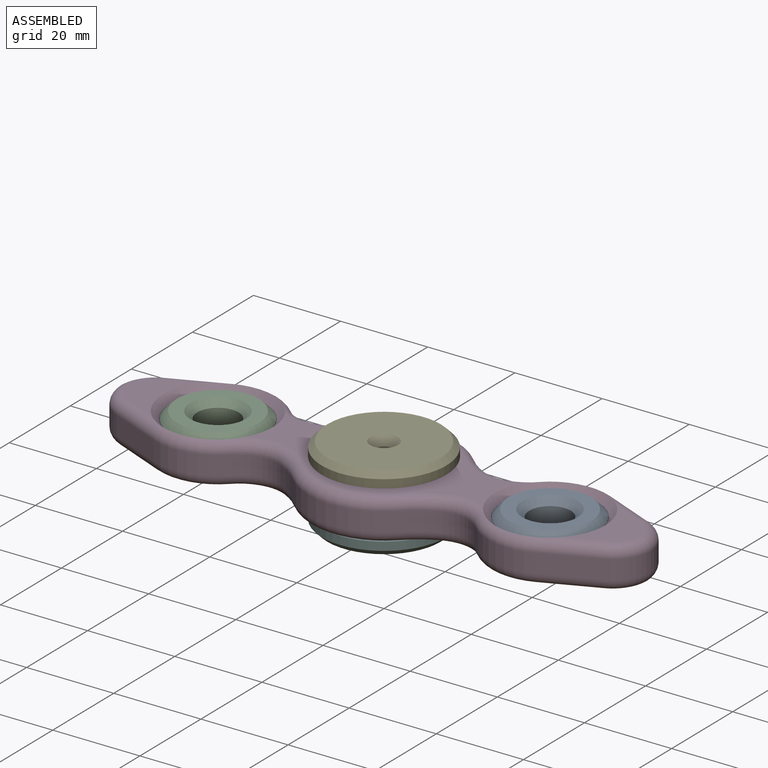
[diagram: assembled view]
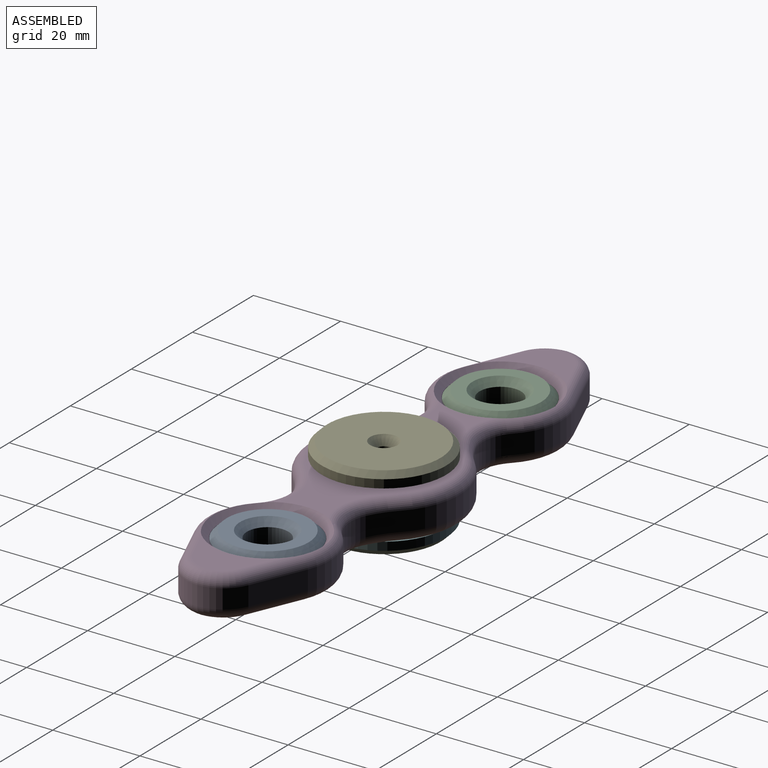
[diagram: assembled view, second angle]
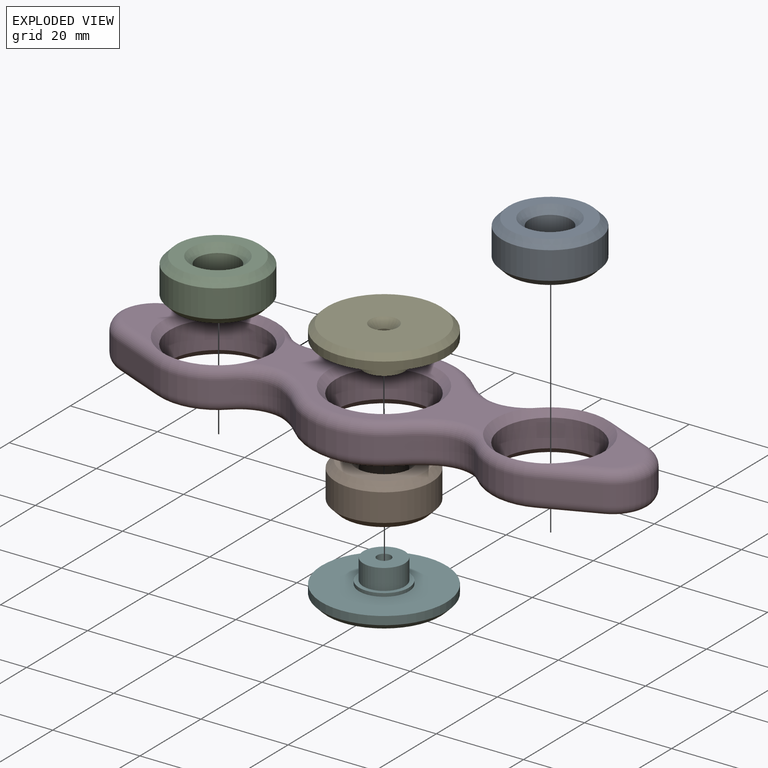
[diagram: exploded view]
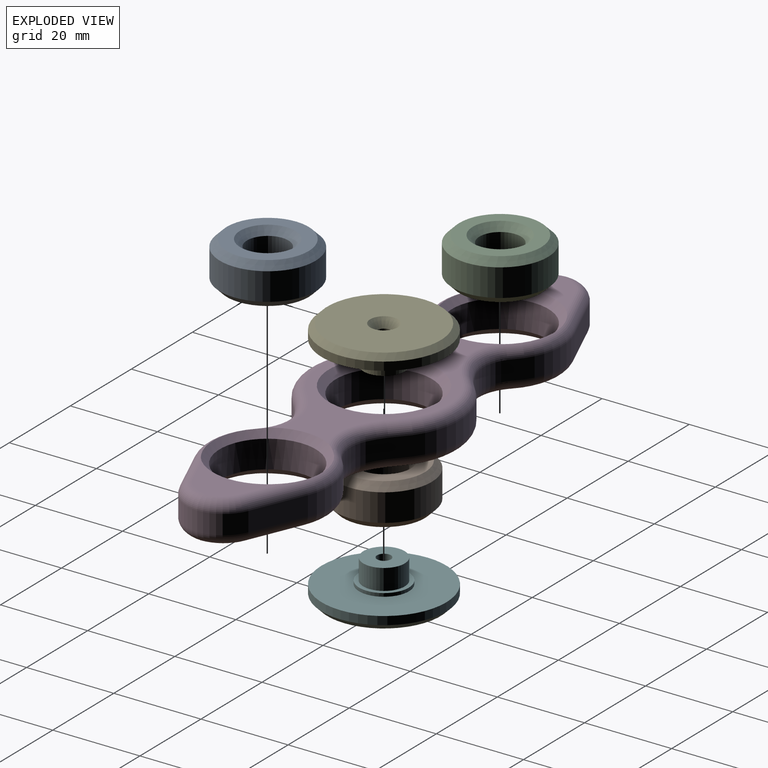
[diagram: exploded view, second angle]
ASSEMBLY  parts=6 mates=5
PART A: 8 faces, bbox 22x22x9.5 mm
  f0: cylinder r=4.76mm len=9.53mm, axis (0,0,-1), area 190mm2, adj f4,f5
  f1: cylinder r=10.99mm len=21.97mm, axis (0,0,-1), area 438.3mm2, adj f6,f7
  f2: plane 18.8x18.8mm, normal (0,0,1), area 150.8mm2, adj f5,f6
  f3: plane 18.8x18.8mm, normal (0,0,-1), area 150.8mm2, adj f4,f7
  f4: cone r=6.35mm half-angle=45deg, axis (0,0,-1), area 78.4mm2, adj f0,f3
  f5: cone r=4.76mm half-angle=45deg, axis (0,0,1), area 78.4mm2, adj f0,f2
  f6: cone r=9.4mm half-angle=45deg, axis (0,0,-1), area 143.8mm2, adj f1,f2
  f7: cone r=10.99mm half-angle=45deg, axis (0,0,1), area 143.8mm2, adj f1,f3
PART B: same geometry as A
PART C: same geometry as A
PART D: 81 faces, bbox 123.9x37.7x9.5 mm
  f0: plane 54.23x29.72mm, normal (0,0,-1), area 459mm2, adj f37,f38,f39,f40,f41,f42,f43,f44
  f1: plane 17.75x11.57mm, normal (0,0,-1), area 97.9mm2, adj f31,f32,f33,f34,f76
  f2: plane 54.23x29.72mm, normal (0,0,1), area 459mm2, adj f59,f60,f61,f62,f63,f64,f65,f66
  f3: plane 17.75x11.57mm, normal (0,0,1), area 97.9mm2, adj f71,f72,f73,f74,f75
  f4: cylinder r=8.89mm len=10.14mm, axis (0,0,-1), area 48.7mm2, adj f5,f26,f37,f67
  f5: cylinder r=14.22mm len=15.62mm, axis (0,0,-1), area 75mm2, adj f4,f6,f35,f69
  f6: plane 12.14x5.15mm, normal (0.39,-0.92,0), area 58.6mm2, adj f5,f7,f33,f71
  f7: cylinder r=8.89mm len=7.94mm, axis (0,0,-1), area 45.1mm2, adj f6,f8,f31,f73
  f8: cylinder r=8.89mm len=7.94mm, axis (0,0,-1), area 45.1mm2, adj f7,f9,f32,f74
  f9: plane 12.14x5.15mm, normal (0.39,0.92,0), area 58.6mm2, adj f8,f10,f34,f72
  f10: cylinder r=14.22mm len=15.62mm, axis (0,0,-1), area 75mm2, adj f9,f11,f36,f70
  f11: cylinder r=8.89mm len=10.14mm, axis (0,0,-1), area 48.7mm2, adj f10,f12,f38,f68
  f12: cylinder r=20.45mm len=5.6mm, axis (0,0,-1), area 30.7mm2, adj f11,f13,f40,f66
  f13: cylinder r=17.4mm len=24.61mm, axis (0,0,-1), area 121.5mm2, adj f12,f14,f42,f64
  f14: cylinder r=20.45mm len=5.6mm, axis (0,0,-1), area 30.7mm2, adj f13,f15,f44,f62
  f15: cylinder r=8.89mm len=10.14mm, axis (0,0,-1), area 48.7mm2, adj f14,f16,f46,f60
  f16: cylinder r=14.22mm len=15.62mm, axis (0,0,-1), area 75mm2, adj f15,f17,f48,f58
  f17: plane 12.14x5.15mm, normal (-0.39,0.92,0), area 58.6mm2, adj f16,f18,f50,f56
  f18: cylinder r=8.89mm len=7.94mm, axis (0,0,-1), area 45.1mm2, adj f17,f19,f52,f54
  f19: cylinder r=8.89mm len=7.94mm, axis (0,0,-1), area 45.1mm2, adj f18,f20,f51,f53
  f20: plane 12.14x5.15mm, normal (-0.39,-0.92,0), area 58.6mm2, adj f19,f21,f49,f55
  f21: cylinder r=14.22mm len=15.62mm, axis (0,0,-1), area 75mm2, adj f20,f22,f47,f57
  f22: cylinder r=8.89mm len=10.14mm, axis (0,0,-1), area 48.7mm2, adj f21,f23,f45,f59
  f23: cylinder r=20.45mm len=5.6mm, axis (0,0,-1), area 30.7mm2, adj f22,f24,f43,f61
  f24: cylinder r=17.4mm len=24.61mm, axis (0,0,-1), area 121.5mm2, adj f23,f26,f41,f63
  f25: cylinder r=11.05mm len=22.1mm, axis (0,0,-1), area 440.8mm2, adj f79,f80
  f26: cylinder r=20.45mm len=5.6mm, axis (0,0,-1), area 30.7mm2, adj f4,f24,f39,f65
  f27: cylinder r=11.05mm len=22.1mm, axis (0,0,-1), area 440.8mm2, adj f75,f76
  f28: cylinder r=11.05mm len=22.1mm, axis (0,0,-1), area 440.8mm2, adj f77,f78
  f29: plane 17.75x11.57mm, normal (0,0,1), area 97.9mm2, adj f53,f54,f55,f56,f78
  f30: plane 17.75x11.57mm, normal (0,0,-1), area 97.9mm2, adj f49,f50,f51,f52,f77
  f31: torus R=6.35mm, axis (0,0,1), area 36.1mm2, adj f1,f7,f32,f33
  f32: torus R=6.35mm, axis (0,0,1), area 36.1mm2, adj f1,f8,f31,f34
  f33: cylinder r=2.54mm len=13.13mm, axis (0.92,0.39,0), area 49.9mm2, adj f1,f6,f31,f35,f76
  f34: cylinder r=2.54mm len=13.13mm, axis (-0.92,0.39,0), area 49.9mm2, adj f1,f9,f32,f36,f76
  f35: torus R=11.68mm, axis (0,0,1), area 51mm2, adj f5,f33,f37,f76
  f36: torus R=11.68mm, axis (0,0,1), area 51mm2, adj f10,f34,f38,f76
  f37: torus R=11.43mm, axis (0,0,1), area 46.4mm2, adj f0,f4,f35,f39,f76
  f38: torus R=11.43mm, axis (0,0,1), area 46.4mm2, adj f0,f11,f36,f40,f76
  f39: torus R=22.99mm, axis (0,0,1), area 28.8mm2, adj f0,f26,f37,f41
  f40: torus R=22.99mm, axis (0,0,1), area 28.8mm2, adj f0,f12,f38,f42
  f41: torus R=14.86mm, axis (0,0,1), area 103.3mm2, adj f0,f24,f39,f43
  f42: torus R=14.86mm, axis (0,0,1), area 103.3mm2, adj f0,f13,f40,f44
  f43: torus R=22.99mm, axis (0,0,1), area 28.8mm2, adj f0,f23,f41,f45
  f44: torus R=22.99mm, axis (0,0,1), area 28.8mm2, adj f0,f14,f42,f46
  f45: torus R=11.43mm, axis (0,0,1), area 46.4mm2, adj f0,f22,f43,f47,f77
  f46: torus R=11.43mm, axis (0,0,1), area 46.4mm2, adj f0,f15,f44,f48,f77
  f47: torus R=11.68mm, axis (0,0,1), area 51mm2, adj f21,f45,f49,f77
  f48: torus R=11.68mm, axis (0,0,1), area 51mm2, adj f16,f46,f50,f77
  f49: cylinder r=2.54mm len=13.13mm, axis (0.92,-0.39,0), area 49.9mm2, adj f20,f30,f47,f51,f77
  f50: cylinder r=2.54mm len=13.13mm, axis (-0.92,-0.39,0), area 49.9mm2, adj f17,f30,f48,f52,f77
  f51: torus R=6.35mm, axis (0,0,1), area 36.1mm2, adj f19,f30,f49,f52
  f52: torus R=6.35mm, axis (0,0,1), area 36.1mm2, adj f18,f30,f50,f51
  f53: torus R=6.35mm, axis (0,0,1), area 36.1mm2, adj f19,f29,f54,f55
  f54: torus R=6.35mm, axis (0,0,1), area 36.1mm2, adj f18,f29,f53,f56
  f55: cylinder r=2.54mm len=13.13mm, axis (-0.92,0.39,0), area 49.9mm2, adj f20,f29,f53,f57,f78
  f56: cylinder r=2.54mm len=13.13mm, axis (0.92,0.39,0), area 49.9mm2, adj f17,f29,f54,f58,f78
  f57: torus R=11.68mm, axis (0,0,1), area 51mm2, adj f21,f55,f59,f78
  f58: torus R=11.68mm, axis (0,0,1), area 51mm2, adj f16,f56,f60,f78
  f59: torus R=11.43mm, axis (0,0,1), area 46.4mm2, adj f2,f22,f57,f61,f78
  f60: torus R=11.43mm, axis (0,0,1), area 46.4mm2, adj f2,f15,f58,f62,f78
  f61: torus R=22.99mm, axis (0,0,1), area 28.8mm2, adj f2,f23,f59,f63
  f62: torus R=22.99mm, axis (0,0,1), area 28.8mm2, adj f2,f14,f60,f64
  f63: torus R=14.86mm, axis (0,0,1), area 103.3mm2, adj f2,f24,f61,f65
  f64: torus R=14.86mm, axis (0,0,1), area 103.3mm2, adj f2,f13,f62,f66
  f65: torus R=22.99mm, axis (0,0,1), area 28.8mm2, adj f2,f26,f63,f67
  f66: torus R=22.99mm, axis (0,0,1), area 28.8mm2, adj f2,f12,f64,f68
  f67: torus R=11.43mm, axis (0,0,1), area 46.4mm2, adj f2,f4,f65,f69,f75
  f68: torus R=11.43mm, axis (0,0,1), area 46.4mm2, adj f2,f11,f66,f70,f75
  f69: torus R=11.68mm, axis (0,0,1), area 51mm2, adj f5,f67,f71,f75
  f70: torus R=11.68mm, axis (0,0,1), area 51mm2, adj f10,f68,f72,f75
  f71: cylinder r=2.54mm len=13.13mm, axis (-0.92,-0.39,0), area 49.9mm2, adj f3,f6,f69,f73,f75
  f72: cylinder r=2.54mm len=13.13mm, axis (0.92,-0.39,0), area 49.9mm2, adj f3,f9,f70,f74,f75
  f73: torus R=6.35mm, axis (0,0,1), area 36.1mm2, adj f3,f7,f71,f74
  f74: torus R=6.35mm, axis (0,0,1), area 36.1mm2, adj f3,f8,f72,f73
  f75: cone r=11.05mm half-angle=45deg, axis (0,0,1), area 159.8mm2, adj f2,f3,f27,f67,f68,f69,f70,f71
  f76: cone r=12.64mm half-angle=45deg, axis (0,0,-1), area 159.8mm2, adj f0,f1,f27,f33,f34,f35,f36,f37
  f77: cone r=12.64mm half-angle=45deg, axis (0,0,-1), area 159.8mm2, adj f0,f28,f30,f45,f46,f47,f48,f49
  f78: cone r=11.05mm half-angle=45deg, axis (0,0,1), area 159.8mm2, adj f2,f28,f29,f55,f56,f57,f58,f59
  f79: cone r=12.64mm half-angle=45deg, axis (0,0,-1), area 167.1mm2, adj f0,f25
  f80: cone r=11.05mm half-angle=45deg, axis (0,0,1), area 167.1mm2, adj f2,f25
PART E: 10 faces, bbox 28.6x28.6x8.7 mm
  f0: plane 9.53x9.53mm, normal (0,0,1), area 63.3mm2, adj f1,f8
  f1: cylinder r=4.76mm len=9.53mm, axis (0,0,-1), area 142.5mm2, adj f0,f2
  f2: plane 11.43x11.43mm, normal (0,0,1), area 31.4mm2, adj f1,f3
  f3: cylinder r=5.71mm len=11.43mm, axis (0,0,-1), area 27.4mm2, adj f2,f4
  f4: plane 28.58x28.58mm, normal (0,0,1), area 538.7mm2, adj f3,f5
  f5: cylinder r=14.29mm len=28.58mm, axis (0,0,-1), area 171mm2, adj f4,f6
  f6: cone r=14.29mm half-angle=45deg, axis (0,0,1), area 154.1mm2, adj f5,f7
  f7: plane 26.04x26.04mm, normal (0,0,-1), area 500.7mm2, adj f6,f9
  f8: cylinder r=1.59mm len=6.87mm, axis (0,0,-1), area 68.6mm2, adj f0,f9
  f9: cone r=1.59mm half-angle=41deg, axis (0,0,-1), area 36.2mm2, adj f7,f8
PART F: 16 faces, bbox 28.6x28.6x8.7 mm
  f0: cone r=14.29mm half-angle=45deg, axis (0,0,-1), area 154.1mm2, adj f1,f9
  f1: cylinder r=14.29mm len=28.58mm, axis (0,0,1), area 171mm2, adj f0,f2
  f2: plane 28.58x28.58mm, normal (0,0,-1), area 538.7mm2, adj f1,f3
  f3: cylinder r=5.71mm len=11.43mm, axis (0,0,1), area 27.4mm2, adj f2,f4
  f4: plane 11.43x11.43mm, normal (0,0,-1), area 31.4mm2, adj f3,f5
  f5: cylinder r=4.76mm len=9.53mm, axis (0,0,1), area 142.5mm2, adj f4,f6
  f6: plane 9.53x9.53mm, normal (0,0,-1), area 63.3mm2, adj f5,f7
  f7: cylinder r=1.59mm len=7.11mm, axis (0,0,1), area 70.9mm2, adj f6,f8
  f8: plane 7.33x6.35mm, normal (0,0,1), area 27mm2, adj f7,f10,f11,f12,f13,f14,f15
  f9: plane 26.04x26.04mm, normal (0,0,1), area 497.4mm2, adj f0,f10,f11,f12,f13,f14,f15
  f10: plane 3.18x1.83mm, normal (-0.87,-0.5,0), area 5.8mm2, adj f8,f9,f11,f14
  f11: plane 3.18x1.83mm, normal (-0.87,0.5,0), area 5.8mm2, adj f8,f9,f10,f12
  f12: plane 3.67x1.59mm, normal (0,1,0), area 5.8mm2, adj f8,f9,f11,f13
  f13: plane 3.18x1.83mm, normal (0.87,0.5,0), area 5.8mm2, adj f8,f9,f12,f15
  f14: plane 3.67x1.59mm, normal (0,-1,0), area 5.8mm2, adj f8,f9,f10,f15
  f15: plane 3.18x1.83mm, normal (0.87,-0.5,0), area 5.8mm2, adj f8,f9,f13,f14
PLACE A t=(38.1,0,0)mm
PLACE B rot(axis=(0,0,-1),128.7deg) t=(0,0,0)mm
PLACE C t=(-38.1,0,0)mm
PLACE D at identity
PLACE E rot(axis=(0.94,-0.34,0),180deg) t=(0,0,4.76)mm
PLACE F rot(axis=(1,0,0),180deg) t=(0,0,4.76)mm
MATE revolute D.f13 <-> B.f0  axis (0,0,1) through (0,0,9.52)mm
MATE revolute E.f1 <-> B.f0  axis (0,0,-1) through (0,0,4.76)mm
MATE revolute D.f16 <-> C.f0  axis (0,0,1) through (-38.1,0,9.52)mm
MATE revolute A.f0 <-> D.f5  axis (0,0,1) through (38.1,0,9.52)mm
MATE revolute F.f0 <-> B.f0  axis (0,0,1) through (0,0,4.76)mm
